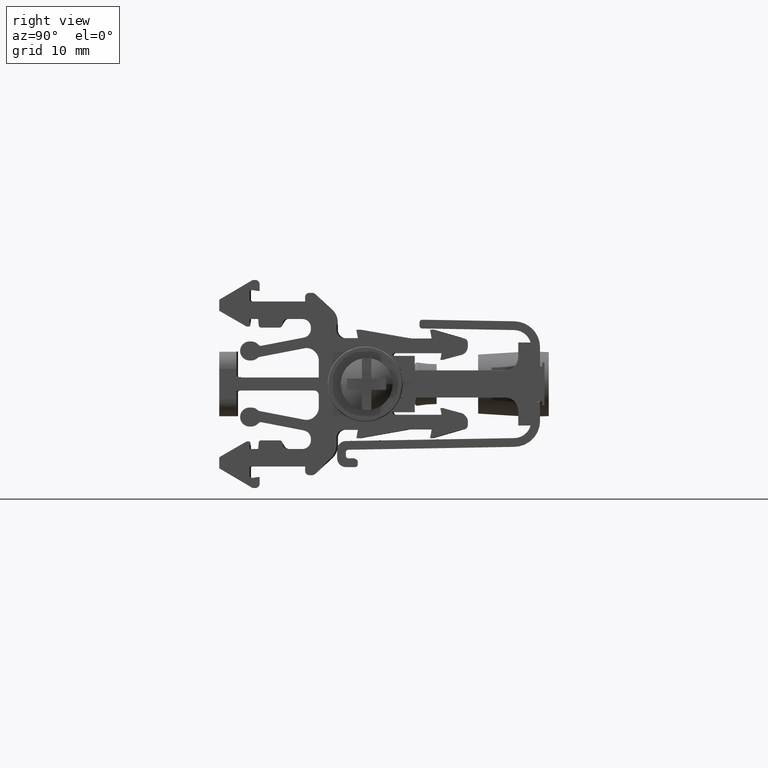
[diagram: clean part render]
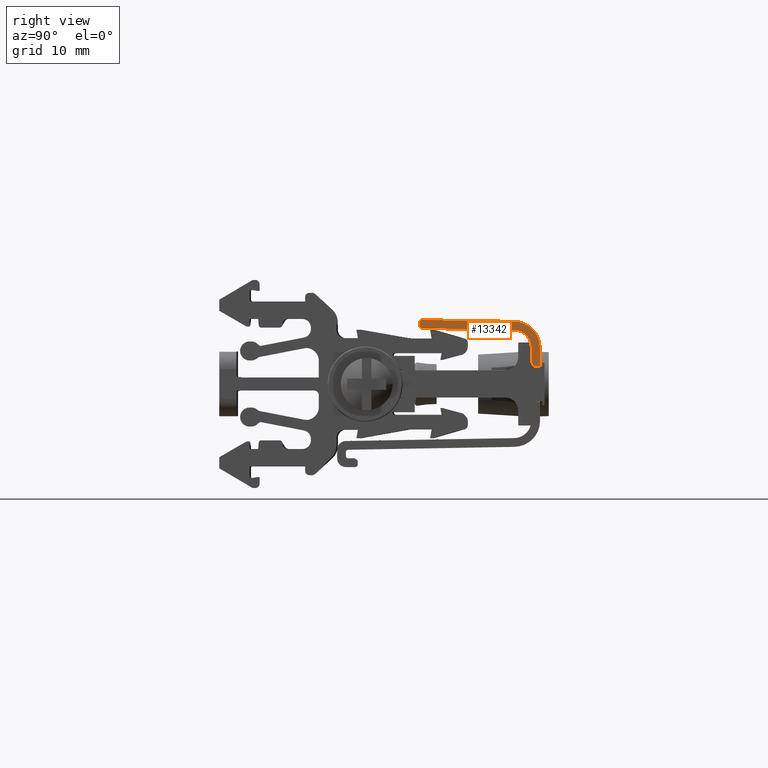
[diagram: same view with one face highlighted and labeled with its STEP entity id]
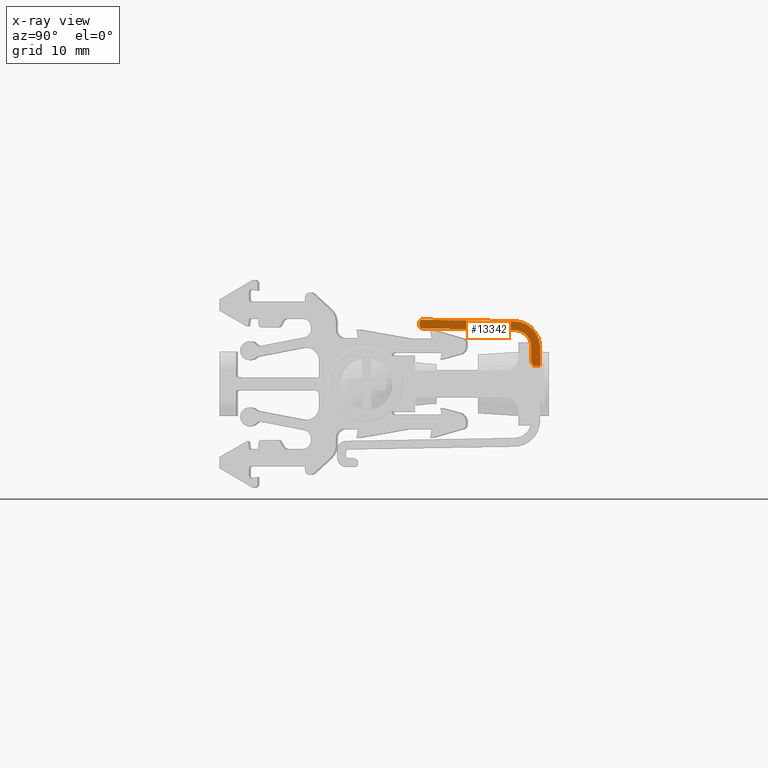
[diagram: x-ray of the same camera — body ghosted, the highlighted face saturated]
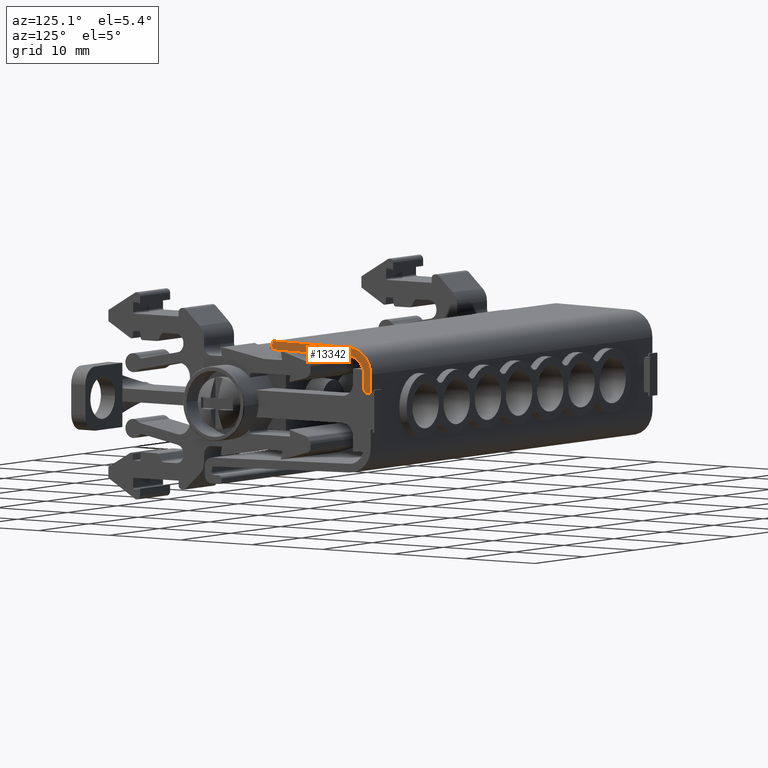
[diagram: same view with one face highlighted and labeled with its STEP entity id]
A machine part, right view. The second image highlights one B-rep face of the part: STEP entity #13342.
The next image is the same camera in x-ray: the body ghosted, the highlighted face saturated — about 0% of this face is hidden behind the body in this view.
A second angle (auxiliary view) of the same face is appended — the face is thin or edge-on in the first view.
In plain terms, the highlighted planar face has unit normal (-1, -0, 0.0002).
Its self-contained STEP definition (entity closure, byte-faithful):
#1183 = CARTESIAN_POINT ( 'NONE',  ( -26.75555531157036200, -44.48529559621541600, 89.73937881456343700 ) ) ;
#1228 = DIRECTION ( 'NONE',  ( -0.9999999883998507100, -1.100273414695494700E-014, 0.0001523164420373389900 ) ) ;
#1234 = FACE_OUTER_BOUND ( 'NONE', #18780, .T. ) ;
#1235 = PLANE ( 'NONE',  #9384 ) ;
#1237 = DIRECTION ( 'NONE',  ( 0.0001523164420373389700, 0.0000000000000000000, 0.9999999883998506000 ) ) ;
#2474 = CARTESIAN_POINT ( 'NONE',  ( -26.75347009182061000, -35.63853830903494900, 103.4294289327458800 ) ) ;
#2482 = CARTESIAN_POINT ( 'NONE',  ( -26.75349195026918300, -35.83193526454613900, 103.2859221121237100 ) ) ;
#2493 = CARTESIAN_POINT ( 'NONE',  ( -26.75351614517691300, -35.86513266440118000, 103.1270757852378600 ) ) ;
#2494 = CARTESIAN_POINT ( 'NONE',  ( -26.75347493711943500, -35.71827254204168200, 103.3976181924209800 ) ) ;
#2498 = CARTESIAN_POINT ( 'NONE',  ( -26.75347030363164100, -35.55887104146755500, 103.4280383354328600 ) ) ;
#2502 = CARTESIAN_POINT ( 'NONE',  ( -26.75350400869361400, -35.86513268955731300, 103.2067551874399100 ) ) ;
#2924 = CARTESIAN_POINT ( 'NONE',  ( -26.75357772243362200, -35.86513254559345400, 102.7256702470308300 ) ) ;
#2991 = CARTESIAN_POINT ( 'NONE',  ( -26.75351614517691300, -35.86513266440118000, 103.1270757852378600 ) ) ;
#3321 = CARTESIAN_POINT ( 'NONE',  ( -26.75395698715307100, -21.96895092788983200, 100.2328250727852700 ) ) ;
#6395 = EDGE_CURVE ( 'NONE', #18228, #24423, #17435, .T. ) ;
#6417 = EDGE_CURVE ( 'NONE', #24506, #18245, #17378, .T. ) ;
#6585 = CARTESIAN_POINT ( 'NONE',  ( -26.75395698715307100, -21.96895092788983200, 100.2328250727852700 ) ) ;
#6589 = CARTESIAN_POINT ( 'NONE',  ( -26.75359330016746300, -23.10519384509004600, 102.6205317212846200 ) ) ;
#6601 = CARTESIAN_POINT ( 'NONE',  ( -26.75349960762219600, -24.53691915628994400, 103.2356494518708700 ) ) ;
#6618 = CARTESIAN_POINT ( 'NONE',  ( -26.75349857184426800, -24.92650077186740300, 103.2424496241872700 ) ) ;
#6619 = CARTESIAN_POINT ( 'NONE',  ( -26.75355916258233400, -23.43282348958753000, 102.8446545032088900 ) ) ;
#6621 = CARTESIAN_POINT ( 'NONE',  ( -26.75367796117652100, -22.55898792816424200, 102.0647085485838500 ) ) ;
#6624 = CARTESIAN_POINT ( 'NONE',  ( -26.75383831203787100, -22.04554318297033400, 101.0119603533455900 ) ) ;
#6627 = CARTESIAN_POINT ( 'NONE',  ( -26.75351230749343400, -24.14882086751341100, 103.1522712497804700 ) ) ;
#6632 = CARTESIAN_POINT ( 'NONE',  ( -26.75389763842838400, -21.96895092788994900, 100.6224660280487100 ) ) ;
#6634 = CARTESIAN_POINT ( 'NONE',  ( -26.75372845274077000, -22.34061720434220200, 101.7332173255862500 ) ) ;
#9384 = AXIS2_PLACEMENT_3D ( 'NONE', #1183, #1228, #1237 ) ;
#9515 = VECTOR ( 'NONE', #31939, 1000.000000000000000 ) ;
#9784 = VECTOR ( 'NONE', #16336, 1000.000000000000200 ) ;
#9806 = VECTOR ( 'NONE', #16259, 1000.000000000000000 ) ;
#10668 = VECTOR ( 'NONE', #29353, 1000.000000000000200 ) ;
#10671 = VECTOR ( 'NONE', #28963, 1000.000000000000000 ) ;
#10675 = VECTOR ( 'NONE', #28855, 999.9999999999998900 ) ;
#10676 = VECTOR ( 'NONE', #29138, 999.9999999999998900 ) ;
#10693 = VECTOR ( 'NONE', #29179, 1000.000000000000200 ) ;
#12813 = EDGE_CURVE ( 'NONE', #18387, #18396, #28813, .T. ) ;
#12834 = EDGE_CURVE ( 'NONE', #18245, #18401, #28971, .T. ) ;
#12857 = EDGE_CURVE ( 'NONE', #18396, #18228, #29152, .T. ) ;
#12865 = EDGE_CURVE ( 'NONE', #18323, #18300, #29165, .T. ) ;
#12906 = EDGE_CURVE ( 'NONE', #18300, #18413, #29364, .T. ) ;
#13342 = ADVANCED_FACE ( 'NONE', ( #1234 ), #1235, .F. ) ;
#14987 = EDGE_CURVE ( 'NONE', #24423, #24506, #31945, .T. ) ;
#15406 = EDGE_CURVE ( 'NONE', #18413, #18387, #18044, .T. ) ;
#15465 = EDGE_CURVE ( 'NONE', #18477, #18384, #16244, .T. ) ;
#15473 = EDGE_CURVE ( 'NONE', #18323, #18384, #16330, .T. ) ;
#15554 = EDGE_CURVE ( 'NONE', #18401, #18477, #18081, .T. ) ;
#16244 = LINE ( 'NONE', #16253, #9806 ) ;
#16253 = CARTESIAN_POINT ( 'NONE',  ( -26.75395698715296400, -21.96895092788986400, 100.2328250727852700 ) ) ;
#16259 = DIRECTION ( 'NONE',  ( -0.0001514243600227974300, -1.591275871328632100E-014, -0.9999999885353315600 ) ) ;
#16308 = CARTESIAN_POINT ( 'NONE',  ( -26.75428519155971000, -21.96755494804217400, 98.05248378327122800 ) ) ;
#16330 = LINE ( 'NONE', #16308, #9784 ) ;
#16336 = DIRECTION ( 'NONE',  ( -0.0000000000000000000, 0.9993908270049749500, -0.03489949710686389400 ) ) ;
#17037 = CARTESIAN_POINT ( 'NONE',  ( -26.75365206746583600, -24.68429075898829000, 102.2347079923268300 ) ) ;
#17038 = CARTESIAN_POINT ( 'NONE',  ( -26.75365137694723200, -24.94401183605921100, 102.2392414405371900 ) ) ;
#17045 = CARTESIAN_POINT ( 'NONE',  ( -26.75371452916267900, -23.72980721811567100, 101.8246295052422000 ) ) ;
#17070 = CARTESIAN_POINT ( 'NONE',  ( -26.75377096983539000, -23.36566994013663400, 101.4540807234153400 ) ) ;
#17071 = CARTESIAN_POINT ( 'NONE',  ( -26.75366053404666300, -24.42555856645109500, 102.1791225242633600 ) ) ;
#17077 = CARTESIAN_POINT ( 'NONE',  ( -26.75387787040961400, -23.02337344331258600, 100.7522485932054200 ) ) ;
#17083 = CARTESIAN_POINT ( 'NONE',  ( -26.75369177077259800, -23.94822698113083300, 101.9740446932020300 ) ) ;
#17084 = CARTESIAN_POINT ( 'NONE',  ( -26.75395698715318100, -22.97231193991986600, 100.2328250727933200 ) ) ;
#17085 = CARTESIAN_POINT ( 'NONE',  ( -26.75380463087821400, -23.22008945757692900, 101.2330865747343300 ) ) ;
#17087 = CARTESIAN_POINT ( 'NONE',  ( -26.75391742133662000, -22.97231193992089600, 100.4925857096549600 ) ) ;
#17378 = B_SPLINE_CURVE_WITH_KNOTS ( 'NONE', 3,
 ( #2493, #2502, #2482, #2494, #2474, #2498 ),
 .UNSPECIFIED., .F., .F.,
 ( 4, 2, 4 ),
 ( 0.0000000000000000000, 0.5000000000000000000, 1.000000000000000000 ),
 .UNSPECIFIED. ) ;
#17435 = B_SPLINE_CURVE_WITH_KNOTS ( 'NONE', 3,
 ( #26357, #26365, #26317, #26359, #26318, #26325 ),
 .UNSPECIFIED., .F., .F.,
 ( 4, 2, 4 ),
 ( 0.0000000000000000000, 0.5000000000000000000, 1.000000000000000000 ),
 .UNSPECIFIED. ) ;
#18044 = B_SPLINE_CURVE_WITH_KNOTS ( 'NONE', 3,
 ( #17084, #17087, #17077, #17085, #17070, #17045, #17083, #17071, #17037, #17038 ),
 .UNSPECIFIED., .F., .F.,
 ( 4, 2, 2, 2, 4 ),
 ( 0.0000000000000000000, 0.2500000000000000000, 0.5000000000000000000, 0.7500000000000000000, 1.000000000000000000 ),
 .UNSPECIFIED. ) ;
#18081 = B_SPLINE_CURVE_WITH_KNOTS ( 'NONE', 3,
 ( #6618, #6601, #6627, #6619, #6589, #6621, #6634, #6624, #6632, #6585 ),
 .UNSPECIFIED., .F., .F.,
 ( 4, 2, 2, 2, 4 ),
 ( 0.0000000000000000000, 0.2500000000000000000, 0.5000000000000000000, 0.7500000000000000000, 1.000000000000000000 ),
 .UNSPECIFIED. ) ;
#18228 = VERTEX_POINT ( 'NONE', #27269 ) ;
#18245 = VERTEX_POINT ( 'NONE', #27311 ) ;
#18300 = VERTEX_POINT ( 'NONE', #27355 ) ;
#18323 = VERTEX_POINT ( 'NONE', #27353 ) ;
#18384 = VERTEX_POINT ( 'NONE', #27443 ) ;
#18387 = VERTEX_POINT ( 'NONE', #27437 ) ;
#18396 = VERTEX_POINT ( 'NONE', #27429 ) ;
#18401 = VERTEX_POINT ( 'NONE', #27411 ) ;
#18413 = VERTEX_POINT ( 'NONE', #27951 ) ;
#18477 = VERTEX_POINT ( 'NONE', #3321 ) ;
#18780 = EDGE_LOOP ( 'NONE', ( #25524, #25477, #25490, #25568, #25572, #25657, #25581, #25547, #25634, #25647, #25622, #25539 ) ) ;
#24423 = VERTEX_POINT ( 'NONE', #2924 ) ;
#24506 = VERTEX_POINT ( 'NONE', #2991 ) ;
#25477 = ORIENTED_EDGE ( 'NONE', *, *, #12834, .F. ) ;
#25490 = ORIENTED_EDGE ( 'NONE', *, *, #6417, .F. ) ;
#25524 = ORIENTED_EDGE ( 'NONE', *, *, #15554, .F. ) ;
#25539 = ORIENTED_EDGE ( 'NONE', *, *, #15465, .F. ) ;
#25547 = ORIENTED_EDGE ( 'NONE', *, *, #15406, .F. ) ;
#25568 = ORIENTED_EDGE ( 'NONE', *, *, #14987, .F. ) ;
#25572 = ORIENTED_EDGE ( 'NONE', *, *, #6395, .F. ) ;
#25581 = ORIENTED_EDGE ( 'NONE', *, *, #12813, .F. ) ;
#25622 = ORIENTED_EDGE ( 'NONE', *, *, #15473, .T. ) ;
#25634 = ORIENTED_EDGE ( 'NONE', *, *, #12906, .F. ) ;
#25647 = ORIENTED_EDGE ( 'NONE', *, *, #12865, .F. ) ;
#25657 = ORIENTED_EDGE ( 'NONE', *, *, #12857, .F. ) ;
#26317 = CARTESIAN_POINT ( 'NONE',  ( -26.75361876076273400, -35.72419791912017900, 102.4591085046491100 ) ) ;
#26318 = CARTESIAN_POINT ( 'NONE',  ( -26.75359002876859500, -35.86513251307099600, 102.6477420718767300 ) ) ;
#26325 = CARTESIAN_POINT ( 'NONE',  ( -26.75357772243362200, -35.86513254559345400, 102.7256702470308300 ) ) ;
#26357 = CARTESIAN_POINT ( 'NONE',  ( -26.75362421884139500, -35.56937755354815800, 102.4247078700603700 ) ) ;
#26359 = CARTESIAN_POINT ( 'NONE',  ( -26.75360182856699300, -35.83343909785894300, 102.5702730993610600 ) ) ;
#26365 = CARTESIAN_POINT ( 'NONE',  ( -26.75362379338691800, -35.64729386053844000, 102.4260679211492800 ) ) ;
#27269 = CARTESIAN_POINT ( 'NONE',  ( -26.75362421884139500, -35.56937755354815800, 102.4247078700603700 ) ) ;
#27311 = CARTESIAN_POINT ( 'NONE',  ( -26.75347030363164100, -35.55887104146755500, 103.4280383354328600 ) ) ;
#27353 = CARTESIAN_POINT ( 'NONE',  ( -26.75428519155882500, -22.70029038635554400, 98.07807147451487100 ) ) ;
#27355 = CARTESIAN_POINT ( 'NONE',  ( -26.75421342685650600, -22.97231193991965600, 98.54922678976741700 ) ) ;
#27411 = CARTESIAN_POINT ( 'NONE',  ( -26.75349857184426800, -24.92650077186740300, 103.2424496241872700 ) ) ;
#27429 = CARTESIAN_POINT ( 'NONE',  ( -26.75362487372762000, -34.91252482649423400, 102.4132424799745400 ) ) ;
#27437 = CARTESIAN_POINT ( 'NONE',  ( -26.75365137694723200, -24.94401183605921100, 102.2392414405371900 ) ) ;
#27443 = CARTESIAN_POINT ( 'NONE',  ( -26.75428616405953600, -21.96895092790014600, 98.05253253211090200 ) ) ;
#27951 = CARTESIAN_POINT ( 'NONE',  ( -26.75395698715318100, -22.97231193991986600, 100.2328250727933200 ) ) ;
#28813 = LINE ( 'NONE', #28827, #10675 ) ;
#28827 = CARTESIAN_POINT ( 'NONE',  ( -26.75365137694734600, -24.94401183605883400, 102.2392414405376800 ) ) ;
#28855 = DIRECTION ( 'NONE',  ( 2.658288464268541700E-006, -0.9998476951564447800, 0.01745240623177187600 ) ) ;
#28963 = DIRECTION ( 'NONE',  ( -2.658288464611474500E-006, 0.9998476951563896000, -0.01745240623492679000 ) ) ;
#28969 = CARTESIAN_POINT ( 'NONE',  ( -26.75347030363179000, -35.55887104146755500, 103.4280383354328300 ) ) ;
#28971 = LINE ( 'NONE', #28969, #10671 ) ;
#29138 = DIRECTION ( 'NONE',  ( -0.0000000000000000000, -0.9998476951529159400, 0.01745240663639163100 ) ) ;
#29151 = CARTESIAN_POINT ( 'NONE',  ( -26.75362487372755300, -34.91252482649423400, 102.4132424799745400 ) ) ;
#29152 = LINE ( 'NONE', #29151, #10676 ) ;
#29165 = LINE ( 'NONE', #29173, #10693 ) ;
#29173 = CARTESIAN_POINT ( 'NONE',  ( -26.75428519155704900, -22.70029036804001900, 98.07807148508936700 ) ) ;
#29179 = DIRECTION ( 'NONE',  ( 0.0001319099171058173300, -0.4999998990038175300, 0.8660254520485791700 ) ) ;
#29330 = CARTESIAN_POINT ( 'NONE',  ( -26.75555531157059600, -22.97231193991975900, 89.73937881456343700 ) ) ;
#29353 = DIRECTION ( 'NONE',  ( 0.0001523164420373389700, 0.0000000000000000000, 0.9999999883998506000 ) ) ;
#29364 = LINE ( 'NONE', #29330, #10668 ) ;
#31906 = CARTESIAN_POINT ( 'NONE',  ( -26.75357728584107500, -35.86513253767321900, 102.7256702469643300 ) ) ;
#31939 = DIRECTION ( 'NONE',  ( 0.0001523164421799247000, -3.157106628505782900E-007, 0.9999999883998008700 ) ) ;
#31945 = LINE ( 'NONE', #31906, #9515 ) ;